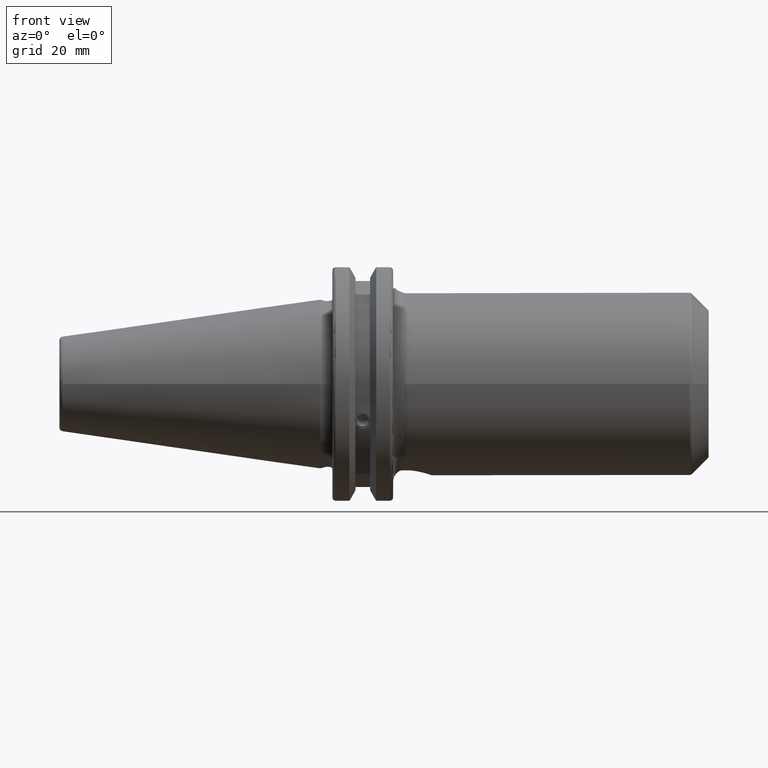
[diagram: clean part render]
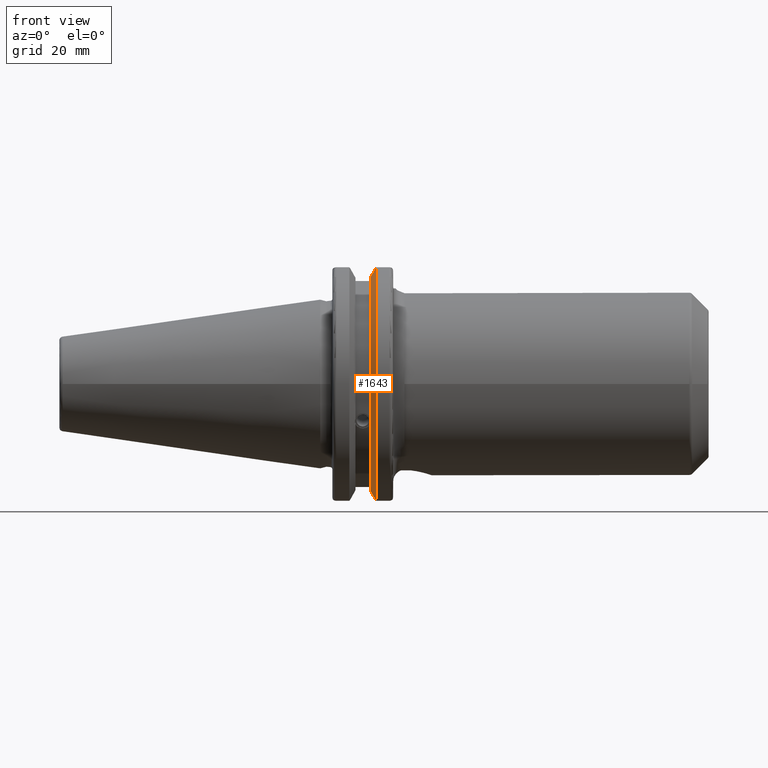
[diagram: same view with one face highlighted and labeled with its STEP entity id]
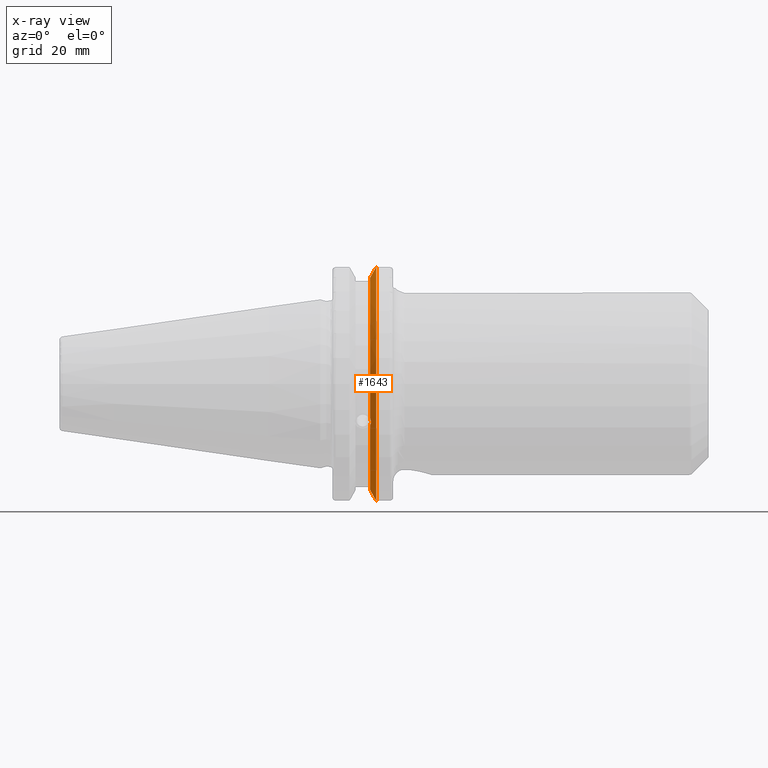
[diagram: x-ray of the same camera — body ghosted, the highlighted face saturated]
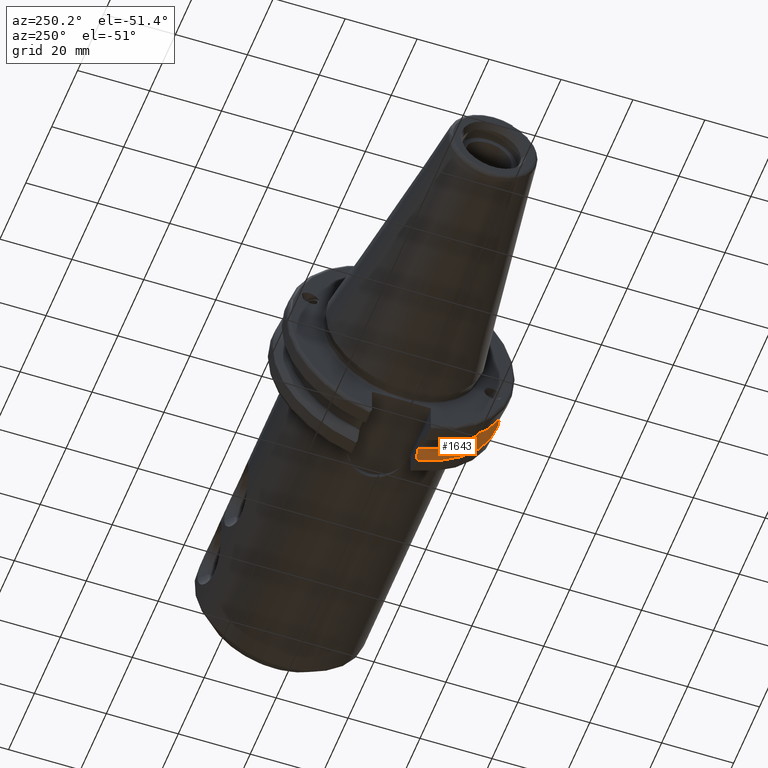
[diagram: same view with one face highlighted and labeled with its STEP entity id]
A machine part, front view. The second image highlights one B-rep face of the part: STEP entity #1643.
The next image is the same camera in x-ray: the body ghosted, the highlighted face saturated — about 0% of this face is hidden behind the body in this view.
A second angle (auxiliary view) of the same face is appended — the face is thin or edge-on in the first view.
In plain terms, the highlighted conical surface has half-angle 60 deg.
Its self-contained STEP definition (entity closure, byte-faithful):
#15=(
BOUNDED_CURVE()
B_SPLINE_CURVE(2,(#2953,#2954,#2955),.UNSPECIFIED.,.F.,.F.)
B_SPLINE_CURVE_WITH_KNOTS((3,3),(0.,0.276549142795512),.UNSPECIFIED.)
CURVE()
GEOMETRIC_REPRESENTATION_ITEM()
RATIONAL_B_SPLINE_CURVE((1.,1.00095203904184,1.00031614445102))
REPRESENTATION_ITEM('')
);
#16=(
BOUNDED_CURVE()
B_SPLINE_CURVE(2,(#2957,#2958,#2959),.UNSPECIFIED.,.F.,.F.)
B_SPLINE_CURVE_WITH_KNOTS((3,3),(0.,0.0639048713675663),.UNSPECIFIED.)
CURVE()
GEOMETRIC_REPRESENTATION_ITEM()
RATIONAL_B_SPLINE_CURVE((1.,1.00028444218286,1.00047644010578))
REPRESENTATION_ITEM('')
);
#17=(
BOUNDED_CURVE()
B_SPLINE_CURVE(2,(#2963,#2964,#2965),.UNSPECIFIED.,.F.,.F.)
B_SPLINE_CURVE_WITH_KNOTS((3,3),(0.329353533631206,0.393258405001023),
 .UNSPECIFIED.)
CURVE()
GEOMETRIC_REPRESENTATION_ITEM()
RATIONAL_B_SPLINE_CURVE((1.00047644010579,1.00028444218287,1.))
REPRESENTATION_ITEM('')
);
#18=(
BOUNDED_CURVE()
B_SPLINE_CURVE(2,(#2967,#2968,#2969),.UNSPECIFIED.,.F.,.F.)
B_SPLINE_CURVE_WITH_KNOTS((3,3),(0.0550586467393779,0.331607789535852),
 .UNSPECIFIED.)
CURVE()
GEOMETRIC_REPRESENTATION_ITEM()
RATIONAL_B_SPLINE_CURVE((1.00031614444922,1.00095203903643,1.))
REPRESENTATION_ITEM('')
);
#178=FACE_OUTER_BOUND('',#281,.T.);
#281=EDGE_LOOP('',(#1256,#1257,#1258,#1259,#1260,#1261,#1262,#1263,#1264));
#384=CIRCLE('',#1802,28.9593772964944);
#385=CIRCLE('',#1803,31.75);
#386=CIRCLE('',#1804,28.9593772964944);
#635=B_SPLINE_CURVE_WITH_KNOTS('',3,(#2861,#2862,#2863,#2864,#2865,#2866,
#2867,#2868),.UNSPECIFIED.,.F.,.F.,(4,2,2,4),(0.451995700189024,0.464547828547662,
0.504528771685167,0.544509714822672),.UNSPECIFIED.);
#639=B_SPLINE_CURVE_WITH_KNOTS('',3,(#2923,#2924,#2925,#2926,#2927,#2928,
#2929,#2930),.UNSPECIFIED.,.F.,.F.,(4,2,2,4),(0.544509714822672,0.584490657960177,
0.624471601097683,0.637023729456322),.UNSPECIFIED.);
#724=VERTEX_POINT('',#2858);
#725=VERTEX_POINT('',#2860);
#732=VERTEX_POINT('',#2921);
#738=VERTEX_POINT('',#2950);
#739=VERTEX_POINT('',#2952);
#740=VERTEX_POINT('',#2956);
#741=VERTEX_POINT('',#2960);
#742=VERTEX_POINT('',#2962);
#743=VERTEX_POINT('',#2966);
#918=EDGE_CURVE('',#725,#724,#635,.T.);
#926=EDGE_CURVE('',#724,#732,#639,.T.);
#935=EDGE_CURVE('',#732,#738,#384,.T.);
#936=EDGE_CURVE('',#738,#739,#15,.T.);
#937=EDGE_CURVE('',#740,#739,#16,.T.);
#938=EDGE_CURVE('',#741,#740,#385,.T.);
#939=EDGE_CURVE('',#742,#741,#17,.T.);
#940=EDGE_CURVE('',#742,#743,#18,.T.);
#941=EDGE_CURVE('',#743,#725,#386,.T.);
#1256=ORIENTED_EDGE('',*,*,#918,.T.);
#1257=ORIENTED_EDGE('',*,*,#926,.T.);
#1258=ORIENTED_EDGE('',*,*,#935,.T.);
#1259=ORIENTED_EDGE('',*,*,#936,.T.);
#1260=ORIENTED_EDGE('',*,*,#937,.F.);
#1261=ORIENTED_EDGE('',*,*,#938,.F.);
#1262=ORIENTED_EDGE('',*,*,#939,.F.);
#1263=ORIENTED_EDGE('',*,*,#940,.T.);
#1264=ORIENTED_EDGE('',*,*,#941,.T.);
#1604=CONICAL_SURFACE('',#1801,30.3546886482472,1.0471975511966);
#1643=ADVANCED_FACE('',(#178),#1604,.T.);
#1801=AXIS2_PLACEMENT_3D('',#2949,#2096,#2097);
#1802=AXIS2_PLACEMENT_3D('',#2951,#2098,#2099);
#1803=AXIS2_PLACEMENT_3D('',#2961,#2100,#2101);
#1804=AXIS2_PLACEMENT_3D('',#2970,#2102,#2103);
#2096=DIRECTION('center_axis',(1.,0.,0.));
#2097=DIRECTION('ref_axis',(0.,-1.,-1.22464679914735E-16));
#2098=DIRECTION('center_axis',(1.,0.,0.));
#2099=DIRECTION('ref_axis',(0.,0.,-1.));
#2100=DIRECTION('center_axis',(1.,0.,0.));
#2101=DIRECTION('ref_axis',(0.,0.,-1.));
#2102=DIRECTION('center_axis',(1.,0.,0.));
#2103=DIRECTION('ref_axis',(0.,0.,-1.));
#2858=CARTESIAN_POINT('',(13.2341,-27.51401829017,-10.0142836826778));
#2860=CARTESIAN_POINT('',(13.0491,-27.4956274489925,-9.09043478536245));
#2861=CARTESIAN_POINT('Ctrl Pts',(13.0491,-27.4956274489925,-9.09043478536245));
#2862=CARTESIAN_POINT('Ctrl Pts',(13.0632204071996,-27.5087667900418,-9.12860597076217));
#2863=CARTESIAN_POINT('Ctrl Pts',(13.0766929817857,-27.5206055003513,-9.16696618806877));
#2864=CARTESIAN_POINT('Ctrl Pts',(13.130081441159,-27.5642934663232,-9.32791534028656));
#2865=CARTESIAN_POINT('Ctrl Pts',(13.1682197084175,-27.5867382255984,-9.46717946402648));
#2866=CARTESIAN_POINT('Ctrl Pts',(13.2204106446058,-27.5847569104122,-9.74771639360671));
#2867=CARTESIAN_POINT('Ctrl Pts',(13.2341,-27.559599249844,-9.8890510252165));
#2868=CARTESIAN_POINT('Ctrl Pts',(13.2341,-27.51401829017,-10.0142836826777));
#2921=CARTESIAN_POINT('',(13.0491,-26.9060914640648,-10.7101715919071));
#2923=CARTESIAN_POINT('Ctrl Pts',(13.2341,-27.51401829017,-10.0142836826777));
#2924=CARTESIAN_POINT('Ctrl Pts',(13.2341,-27.4684373304961,-10.139516340139));
#2925=CARTESIAN_POINT('Ctrl Pts',(13.2204106446058,-27.3968610665578,-10.2639559818059));
#2926=CARTESIAN_POINT('Ctrl Pts',(13.1682197084175,-27.2180531796526,-10.4801333026531));
#2927=CARTESIAN_POINT('Ctrl Pts',(13.130081441159,-27.1113422433189,-10.5723885976054));
#2928=CARTESIAN_POINT('Ctrl Pts',(13.0766929817857,-26.9744191989197,-10.6676007180673));
#2929=CARTESIAN_POINT('Ctrl Pts',(13.0632204071996,-26.9406927482839,-10.6893765730703));
#2930=CARTESIAN_POINT('Ctrl Pts',(13.0491,-26.9060914640648,-10.7101715919071));
#2949=CARTESIAN_POINT('Origin',(13.8546833845378,0.,0.));
#2950=CARTESIAN_POINT('',(13.0491,-8.19,-27.7771386827498));
#2951=CARTESIAN_POINT('Origin',(13.0491,0.,0.));
#2952=CARTESIAN_POINT('',(14.3815146964874,-8.19,-30.1755016258903));
#2953=CARTESIAN_POINT('Ctrl Pts',(13.0491,-8.19,-27.7771386827498));
#2954=CARTESIAN_POINT('Ctrl Pts',(13.68773643849,-8.19,-28.9303689539956));
#2955=CARTESIAN_POINT('Ctrl Pts',(14.3815146964874,-8.19,-30.1755016258903));
#2956=CARTESIAN_POINT('',(14.6602667690756,-8.67204822802686,-30.5427254764662));
#2957=CARTESIAN_POINT('Ctrl Pts',(14.6602667690756,-8.67204822802687,-30.5427254764662));
#2958=CARTESIAN_POINT('Ctrl Pts',(14.5192085187837,-8.42917748262644,-30.357706789263));
#2959=CARTESIAN_POINT('Ctrl Pts',(14.3815146964874,-8.19,-30.1755016258903));
#2960=CARTESIAN_POINT('',(14.6602667690756,-8.67204822802685,30.5427254764662));
#2961=CARTESIAN_POINT('Origin',(14.6602667690756,0.,0.));
#2962=CARTESIAN_POINT('',(14.3815146964874,-8.19,30.1755016258903));
#2963=CARTESIAN_POINT('Ctrl Pts',(14.3815146964874,-8.19,30.1755016258903));
#2964=CARTESIAN_POINT('Ctrl Pts',(14.5192085187884,-8.42917748263465,30.3577067892692));
#2965=CARTESIAN_POINT('Ctrl Pts',(14.6602667690756,-8.67204822802686,30.5427254764662));
#2966=CARTESIAN_POINT('',(13.0491,-8.19,27.7771386827498));
#2967=CARTESIAN_POINT('Ctrl Pts',(14.3815146964874,-8.19,30.1755016258903));
#2968=CARTESIAN_POINT('Ctrl Pts',(13.687736438474,-8.19,28.9303689539668));
#2969=CARTESIAN_POINT('Ctrl Pts',(13.0491,-8.19,27.7771386827498));
#2970=CARTESIAN_POINT('Origin',(13.0491,0.,0.));